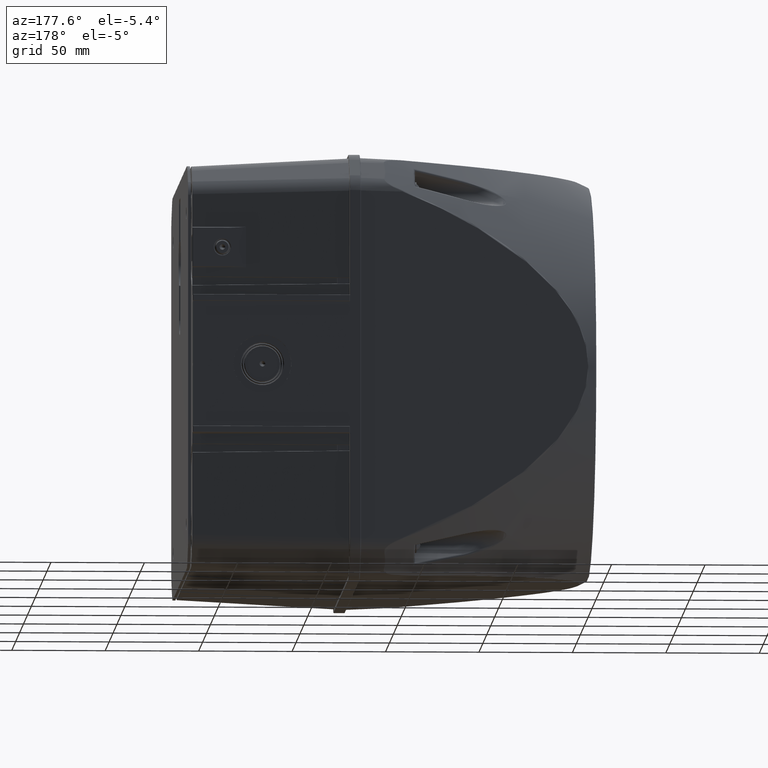
[diagram: clean part render]
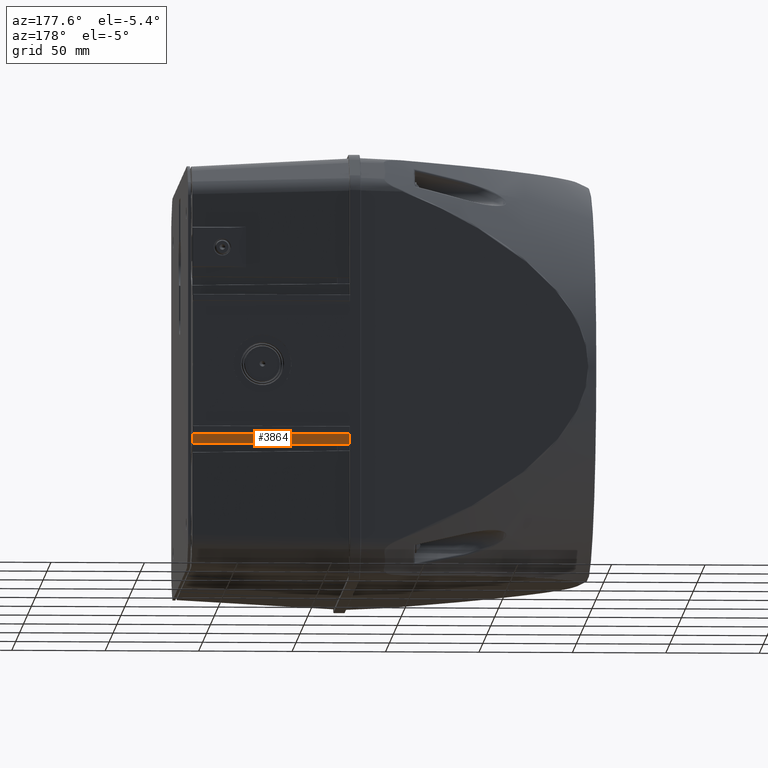
[diagram: same view with one face highlighted and labeled with its STEP entity id]
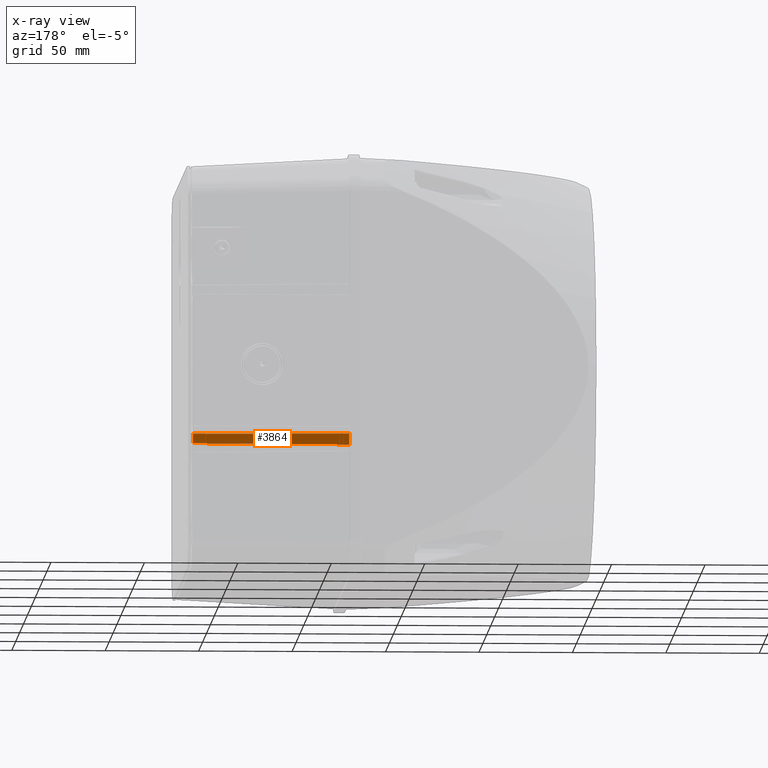
[diagram: x-ray of the same camera — body ghosted, the highlighted face saturated]
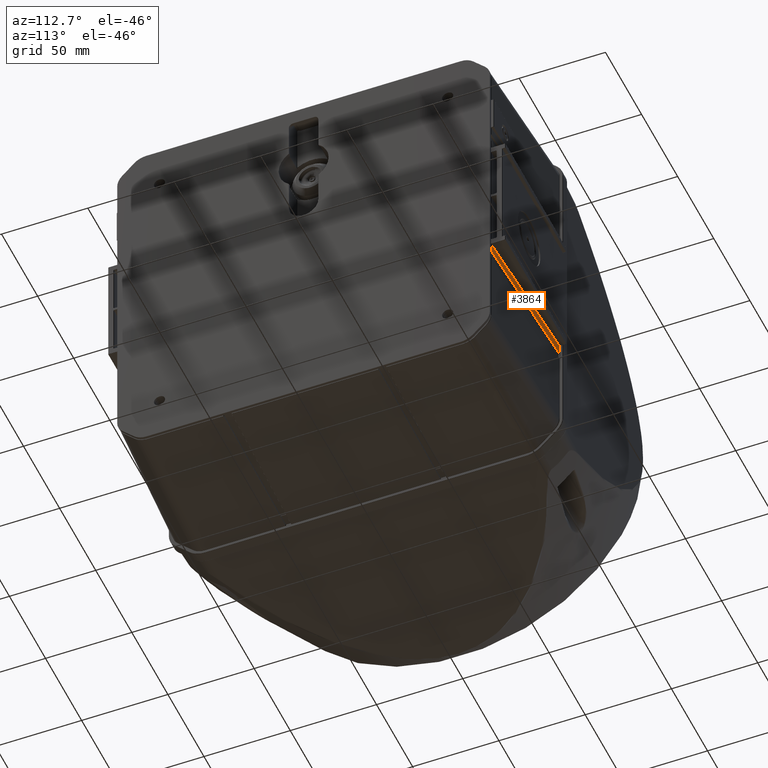
[diagram: same view with one face highlighted and labeled with its STEP entity id]
A machine part, auxiliary view. The second image highlights one B-rep face of the part: STEP entity #3864.
The next image is the same camera in x-ray: the body ghosted, the highlighted face saturated — about 0% of this face is hidden behind the body in this view.
A second angle (auxiliary view) of the same face is appended — the face is thin or edge-on in the first view.
In plain terms, the highlighted planar face has unit normal (0.0523, 0.9986, -0).
Its self-contained STEP definition (entity closure, byte-faithful):
#603=ELLIPSE('',#23744,0.450617555699064,0.45);
#604=ELLIPSE('',#23745,0.450617555699064,0.45);
#3864=ADVANCED_FACE('',(#5711),#5153,.T.);
#5153=PLANE('',#23746);
#5711=FACE_OUTER_BOUND('',#7209,.T.);
#7209=EDGE_LOOP('',(#10465,#10466,#10467,#10468,#10469,#10470));
#10465=ORIENTED_EDGE('',*,*,#18336,.T.);
#10466=ORIENTED_EDGE('',*,*,#18337,.T.);
#10467=ORIENTED_EDGE('',*,*,#18338,.T.);
#10468=ORIENTED_EDGE('',*,*,#18339,.T.);
#10469=ORIENTED_EDGE('',*,*,#18340,.T.);
#10470=ORIENTED_EDGE('',*,*,#18341,.T.);
#16073=VERTEX_POINT('',#42149);
#16074=VERTEX_POINT('',#42150);
#16075=VERTEX_POINT('',#42152);
#16076=VERTEX_POINT('',#42154);
#16077=VERTEX_POINT('',#42156);
#16078=VERTEX_POINT('',#42158);
#18336=EDGE_CURVE('',#16073,#16074,#20934,.T.);
#18337=EDGE_CURVE('',#16074,#16075,#603,.T.);
#18338=EDGE_CURVE('',#16075,#16076,#20935,.T.);
#18339=EDGE_CURVE('',#16076,#16077,#20936,.T.);
#18340=EDGE_CURVE('',#16077,#16078,#604,.T.);
#18341=EDGE_CURVE('',#16078,#16073,#20937,.T.);
#20934=LINE('',#42148,#22301);
#20935=LINE('',#42153,#22302);
#20936=LINE('',#42155,#22303);
#20937=LINE('',#42159,#22304);
#22301=VECTOR('',#27939,1.);
#22302=VECTOR('',#27942,1.);
#22303=VECTOR('',#27943,1.);
#22304=VECTOR('',#27946,1.);
#23744=AXIS2_PLACEMENT_3D('',#42151,#27940,#27941);
#23745=AXIS2_PLACEMENT_3D('',#42157,#27944,#27945);
#23746=AXIS2_PLACEMENT_3D('',#42160,#27947,#27948);
#27939=DIRECTION('',(-0.0523359562429438,4.12463356605371E-016,-0.998629534754574));
#27940=DIRECTION('',(-0.998629534754574,-3.69567167518412E-016,0.0523359562429438));
#27941=DIRECTION('',(0.0523359562429438,-7.05176163871537E-015,0.998629534754574));
#27942=DIRECTION('',(-3.70074341541719E-016,1.,3.07726483893332E-033));
#27943=DIRECTION('',(0.0523339689081494,0.00871457699362753,0.998591614147717));
#27944=DIRECTION('',(-0.998629534754574,-3.69567167518412E-016,0.0523359562429438));
#27945=DIRECTION('',(0.0523359562429438,-1.05616039394973E-014,0.998629534754574));
#27946=DIRECTION('',(3.70074341541719E-016,-1.,-3.07726483893332E-033));
#27947=DIRECTION('',(0.998629534754574,3.69567167518412E-016,-0.0523359562429438));
#27948=DIRECTION('',(-0.0523359562429438,0.,-0.998629534754574));
#42148=CARTESIAN_POINT('',(107.793781420383,37.25,-218.148824256376));
#42149=CARTESIAN_POINT('',(112.173137082292,37.25,-134.585740267315));
#42150=CARTESIAN_POINT('',(107.794467123194,37.25,-218.135740267315));
#42151=CARTESIAN_POINT('',(107.794467123194,36.8,-218.135740267315));
#42152=CARTESIAN_POINT('',(107.793232858134,37.2493832906396,-218.159291447624));
#42153=CARTESIAN_POINT('',(107.793232858134,-1.56196415586306E-014,-218.159291447624));
#42154=CARTESIAN_POINT('',(107.793232858134,42.3803210338342,-218.159291447624));
#42155=CARTESIAN_POINT('',(112.172656889561,43.1095764047883,-134.594902890445));
#42156=CARTESIAN_POINT('',(112.172108619488,43.1094851076468,-134.60536450665));
#42157=CARTESIAN_POINT('',(112.171902817232,43.5594679730257,-134.609291447624));
#42158=CARTESIAN_POINT('',(112.173137082292,43.1100846823862,-134.585740267315));
#42159=CARTESIAN_POINT('',(112.173137082292,-1.39987513868597E-014,-134.585740267315));
#42160=CARTESIAN_POINT('',(112.5,-1.38777878078145E-014,-128.348824256376));